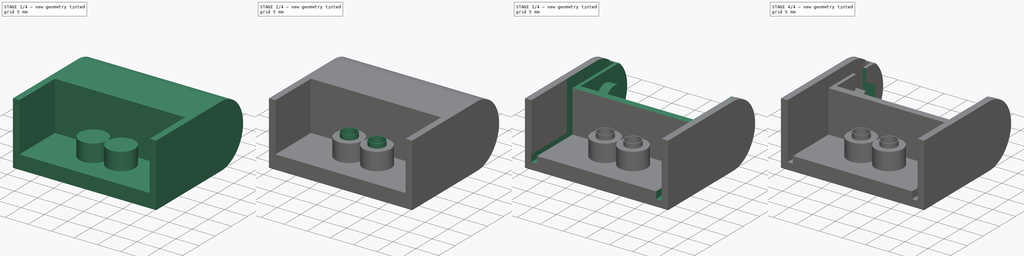
[diagram: build sequence overview — one tinted view per stage of 4, left to right]
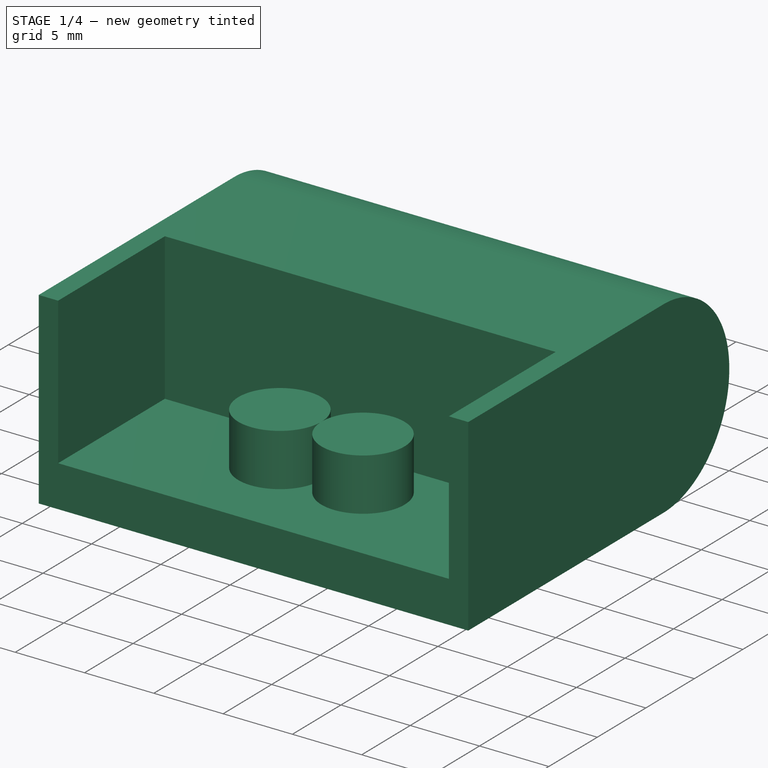
[diagram: stage 1 of 4 — iso view after this stage's code; geometry added in this stage tinted green]
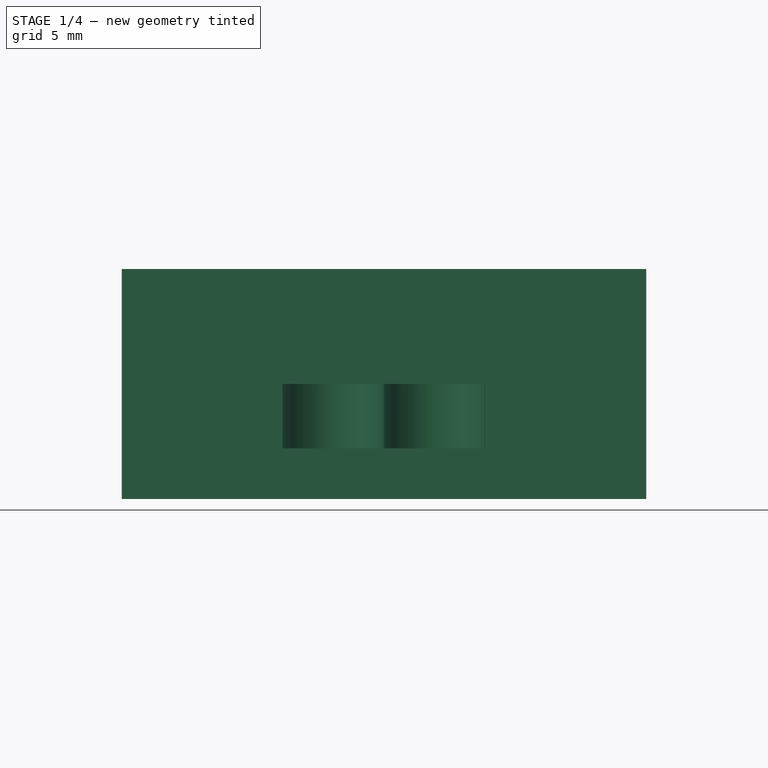
[diagram: stage 1 of 4 — front view after this stage's code; geometry added in this stage tinted green]
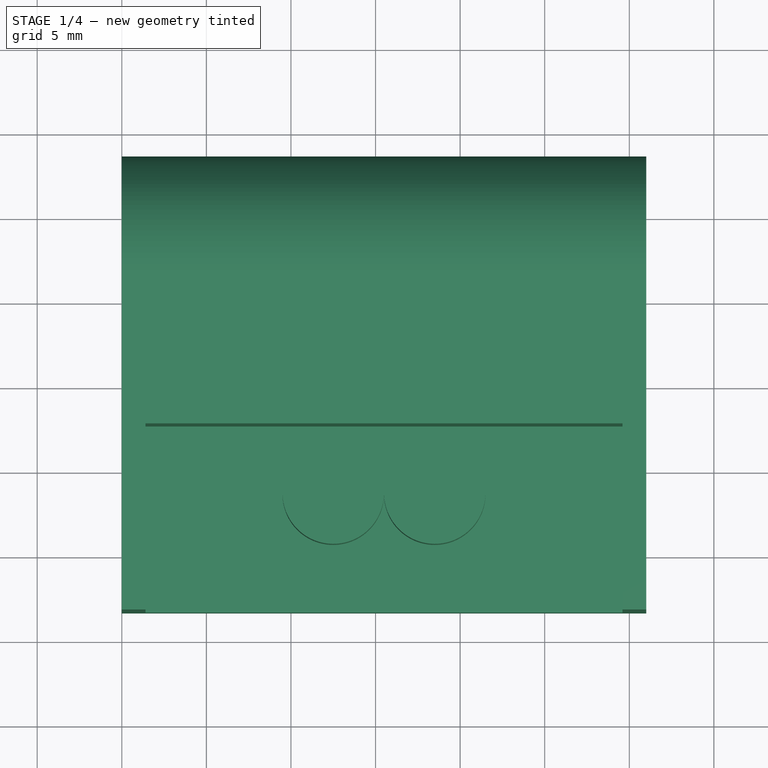
[diagram: stage 1 of 4 — top view after this stage's code; geometry added in this stage tinted green]
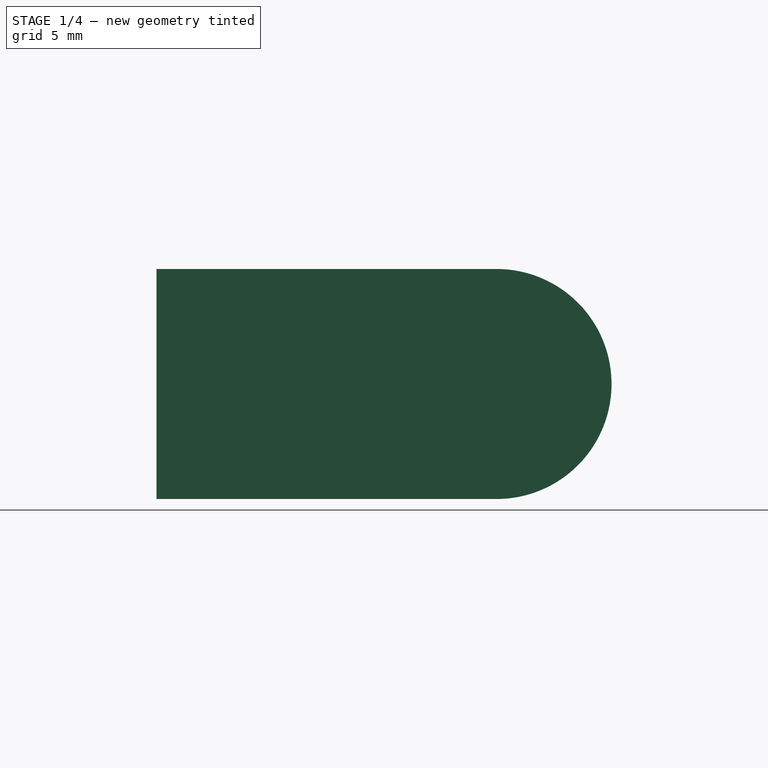
[diagram: stage 1 of 4 — right view after this stage's code; geometry added in this stage tinted green]
FCSTD DOCUMENT  (FreeCAD 1.0R38806 (Git))
Label: HingeBody
License: All rights reserved
LicenseURL: http://en.wikipedia.org/wiki/All_rights_reserved
objects: Sketcher::SketchObject×13, PartDesign::Pocket×8, PartDesign::Pad×5, PartDesign::Body×1
note: 66 computed .brp shape members not serialized (recipe doc carries the construction recipe); baked Part::Feature solids carry a one-line shape summary decoded from their .brp

FEATURE [Sketcher::SketchObject] Sketch
  ArcFitTolerance = 1e-06
  AttachmentSupport = -> [YZ_Plane]
  FullyConstrained = true
  MakeInternals = false
  MapMode = 5
  Placement = pos=(0,0,0) rot=(0.57735,0.57735,0.57735;2.0944rad)
  sketch-geometry (4):
    g0: LineSegment StartX=-13.3 StartY=6.8 StartZ=0 EndX=-13.3 EndY=-6.8 EndZ=0
    g1: ArcOfCircle CenterX=6.8 CenterY=0 CenterZ=0 NormalX=0 NormalY=0 NormalZ=1 AngleXU=0 Radius=6.8 StartAngle=4.71239 EndAngle=7.85399
    g2: LineSegment StartX=-13.3 StartY=6.8 StartZ=0 EndX=6.79996 EndY=6.8 EndZ=0
    g3: LineSegment StartX=-13.3 StartY=-6.8 StartZ=0 EndX=6.80003 EndY=-6.8 EndZ=0
  constraints (13):
    c: Vertical(g0)
    c: DistanceY(g0,g0) = 13.6
    c: Radius(g1) = 6.8
    c: Angle(g1) = 3.14159
    c: PointOnObject(g1,g-1)
    c: Distance(g-1,g1) = 6.8
    c: Distance(g-1,g0) = 13.3
    c: Coincident(g2,g0)
    c: Coincident(g2,g1)
    c: Coincident(g0,g3)
    c: Coincident(g3,g1)
    c: Parallel(g2,g-1)
    c: Distance(g2,g-1) = 6.8
FEATURE [PartDesign::Pad] Pad  label="MainBody"
  Direction = (1,0,0)
  Length = 31
  Length2 = 10
  Placement = pos=(0,0,0) rot=(1,1,1;2.0944rad)
  Profile = -> Sketch
  ReferenceAxis = -> Sketch [N_Axis]
  Suppressed = false
  Type = 0
FEATURE [Sketcher::SketchObject] Sketch001
  ArcFitTolerance = 1e-06
  AttachmentSupport = -> [Pad]
  ExternalGeometry = -> [Pad]
  FullyConstrained = true
  MakeInternals = false
  MapMode = 5
  Placement = pos=(0,1.5e-15,6.8) rot=(0,0,-1;1.5708rad)
  sketch-geometry (4):
    g0: LineSegment StartX=2.3 StartY=1.4 StartZ=0 EndX=13.3 EndY=1.4 EndZ=0
    g1: LineSegment StartX=13.3 StartY=1.4 StartZ=0 EndX=13.3 EndY=29.6 EndZ=0
    g2: LineSegment StartX=13.3 StartY=29.6 StartZ=0 EndX=2.3 EndY=29.6 EndZ=0
    g3: LineSegment StartX=2.3 StartY=29.6 StartZ=0 EndX=2.3 EndY=1.4 EndZ=0
  constraints (13):
    c: Coincident(g0,g1)
    c: Coincident(g1,g2)
    c: Coincident(g2,g3)
    c: Coincident(g3,g0)
    c: Horizontal(g0)
    c: Horizontal(g2)
    c: Vertical(g1)
    c: Vertical(g3)
    c: PointOnObject(g1,g-3)
    c: DistanceY(g-3,g-3) = 31
    c: Distance(g-1,g0) = 1.4
    c: DistanceX(g2,g2) = 11
    c: Distance(g2,g-4) = 1.4
FEATURE [PartDesign::Pocket] Pocket  label="PocketForScrews"
  BaseFeature = -> Pad
  Direction = (0,0,-1)
  Length = 10.6
  Length2 = 5
  Placement = pos=(0,0,0) rot=(1,1,1;2.0944rad)
  Profile = -> Sketch001
  ReferenceAxis = -> Sketch001 [N_Axis]
  Suppressed = false
  Type = 0
FEATURE [Sketcher::SketchObject] Sketch002
  ArcFitTolerance = 1e-06
  AttachmentSupport = -> [Pocket]
  ExternalGeometry = -> [Pocket]
  FullyConstrained = true
  MakeInternals = false
  MapMode = 5
  Placement = pos=(0,0,-3.8) rot=(0,0,-1;1.5708rad)
  sketch-geometry (2):
    g0: Circle CenterX=6.3 CenterY=18.5 CenterZ=0 NormalX=0 NormalY=0 NormalZ=1 AngleXU=0 Radius=3
    g1: Circle CenterX=6.3 CenterY=12.5 CenterZ=0 NormalX=0 NormalY=0 NormalZ=1 AngleXU=0 Radius=3
  constraints (6):
    c: Diameter(g0) = 6
    c: Diameter(g1) = 6
    c: Distance(g0,g-3) = 7
    c: Distance(g1,g-3) = 7
    c: Distance(g1,g-1) = 12.5
    c: Distance(g0,g-4) = 12.5
FEATURE [PartDesign::Pad] Pad001  label="ScrewHolderOuter"
  BaseFeature = -> Pocket
  Direction = (0,0,1)
  Length = 3.8
  Length2 = 10
  Placement = pos=(0,0,0) rot=(1,1,1;2.0944rad)
  Profile = -> Sketch002
  ReferenceAxis = -> Sketch002 [N_Axis]
  Suppressed = false
  Type = 0
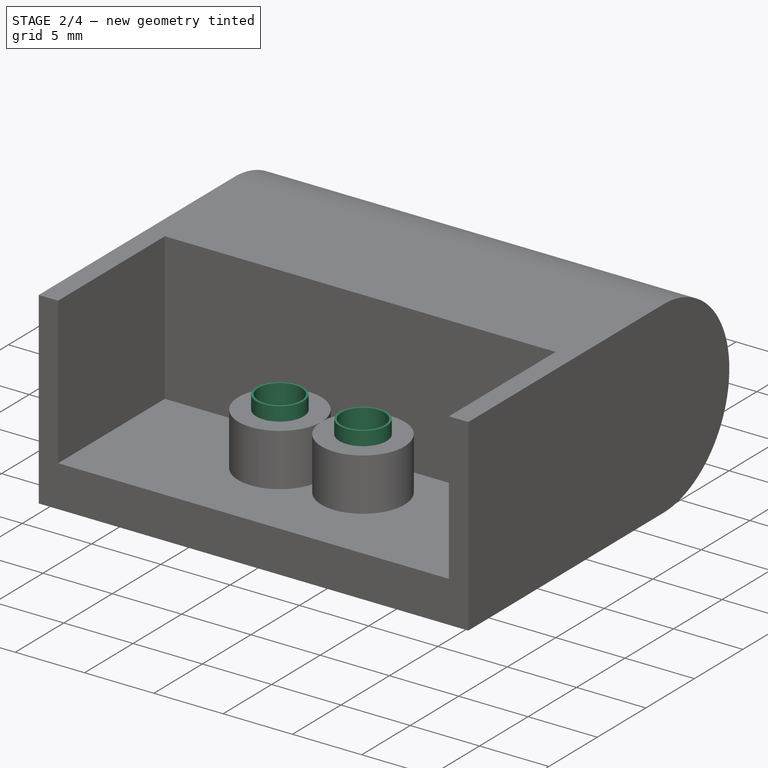
[diagram: stage 2 of 4 — iso view after this stage's code; geometry added in this stage tinted green]
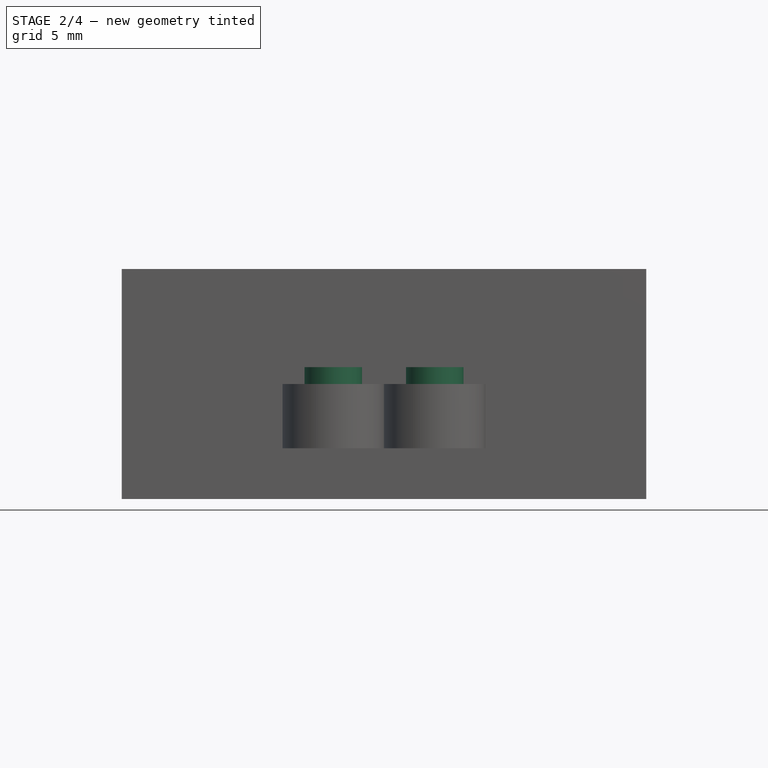
[diagram: stage 2 of 4 — front view after this stage's code; geometry added in this stage tinted green]
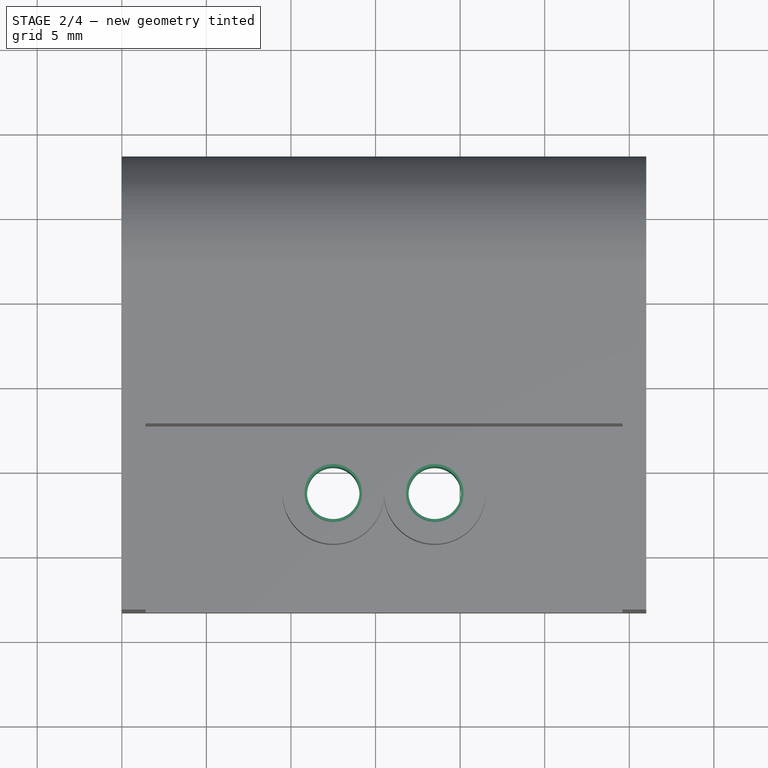
[diagram: stage 2 of 4 — top view after this stage's code; geometry added in this stage tinted green]
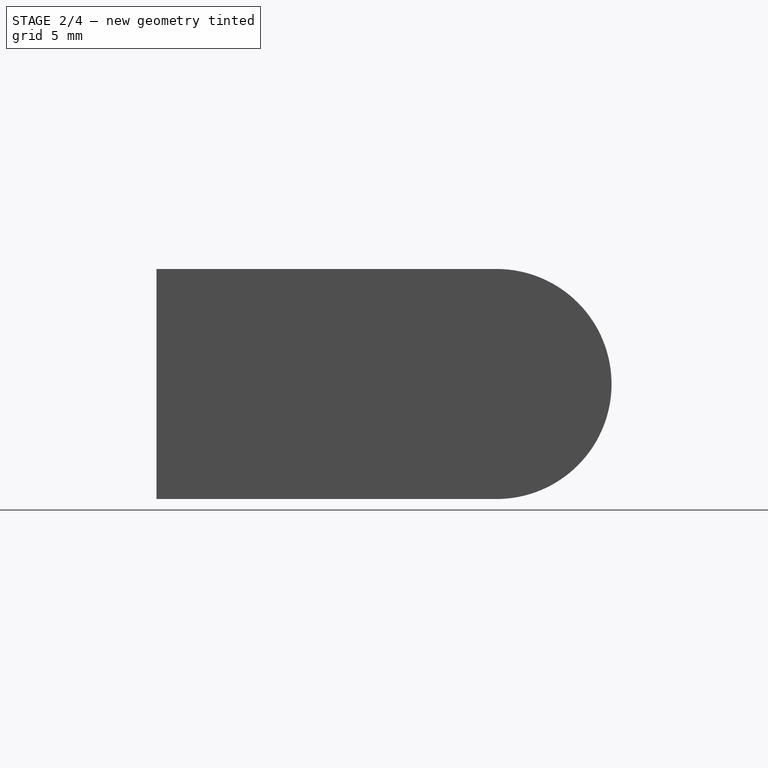
[diagram: stage 2 of 4 — right view after this stage's code; geometry added in this stage tinted green]
FEATURE [Sketcher::SketchObject] Sketch003
  ArcFitTolerance = 1e-06
  AttachmentSupport = -> [Pad001]
  ExternalGeometry = -> [Pad001]
  FullyConstrained = true
  MakeInternals = false
  MapMode = 5
  Placement = pos=(0,0,-3.8) rot=(0,0,-1;1.5708rad)
  sketch-geometry (2):
    g0: Circle CenterX=6.3 CenterY=18.5 CenterZ=0 NormalX=0 NormalY=0 NormalZ=1 AngleXU=0 Radius=1.7
    g1: Circle CenterX=6.3 CenterY=12.5 CenterZ=0 NormalX=0 NormalY=0 NormalZ=1 AngleXU=0 Radius=1.7
  constraints (6):
    c: Diameter(g0) = 3.4
    c: Diameter(g1) = 3.4
    c: Distance(g0,g-3) = 7
    c: Distance(g1,g-3) = 7
    c: Distance(g0,g-4) = 12.5
    c: Distance(g1,g-1) = 12.5
FEATURE [PartDesign::Pad] Pad002  label="ScrewHolderInner"
  BaseFeature = -> Pad001
  Direction = (0,0,1)
  Length = 4.8
  Length2 = 10
  Placement = pos=(0,0,0) rot=(1,1,1;2.0944rad)
  Profile = -> Sketch003
  ReferenceAxis = -> Sketch003 [N_Axis]
  Suppressed = false
  Type = 0
FEATURE [Sketcher::SketchObject] Sketch004
  ArcFitTolerance = 1e-06
  AttachmentSupport = -> [Pad002]
  ExternalGeometry = -> [Pad002]
  FullyConstrained = true
  MakeInternals = false
  MapMode = 5
  Placement = pos=(0,0,-3.8) rot=(0,0,-1;1.5708rad)
  sketch-geometry (2):
    g0: Circle CenterX=6.3 CenterY=18.5 CenterZ=0 NormalX=0 NormalY=0 NormalZ=1 AngleXU=0 Radius=1.55
    g1: Circle CenterX=6.3 CenterY=12.5 CenterZ=0 NormalX=0 NormalY=0 NormalZ=1 AngleXU=0 Radius=1.55
  constraints (6):
    c: Diameter(g0) = 3.1
    c: Diameter(g1) = 3.1
    c: Distance(g0,g-4) = 7
    c: Distance(g1,g-4) = 7
    c: Distance(g0,g-3) = 12.5
    c: Distance(g1,g-1) = 12.5
FEATURE [PartDesign::Pocket] Pocket001  label="ScrewHoles"
  BaseFeature = -> Pad002
  Direction = (0,0,-1)
  Length = 5
  Length2 = 5
  Midplane = true
  Placement = pos=(0,0,0) rot=(1,1,1;2.0944rad)
  Profile = -> Sketch004
  ReferenceAxis = -> Sketch004 [N_Axis]
  Suppressed = false
  Type = 1
FEATURE [Sketcher::SketchObject] Sketch005
  ArcFitTolerance = 1e-06
  AttachmentSupport = -> [Pocket001]
  ExternalGeometry = -> [Pocket001]
  FullyConstrained = true
  MakeInternals = false
  MapMode = 5
  Placement = pos=(0,-4.0201e-12,-6.8) rot=(0.707107,0.707107,0;3.14159rad)
  sketch-geometry (14):
    g0: LineSegment StartX=-3 StartY=18.5 StartZ=0 EndX=-4.65 EndY=21.3579 EndZ=0
    g1: LineSegment StartX=-4.65 StartY=21.3579 StartZ=0 EndX=-7.95 EndY=21.3579 EndZ=0
    g2: LineSegment StartX=-7.95 StartY=21.3579 StartZ=0 EndX=-9.6 EndY=18.5 EndZ=0
    g3: LineSegment StartX=-9.6 StartY=18.5 StartZ=0 EndX=-7.95 EndY=15.6421 EndZ=0
    g4: LineSegment StartX=-7.95 StartY=15.6421 StartZ=0 EndX=-4.65 EndY=15.6421 EndZ=0
    g5: LineSegment StartX=-4.65 StartY=15.6421 StartZ=0 EndX=-3 EndY=18.5 EndZ=0
    g6: Circle [constr] CenterX=-6.3 CenterY=18.5 CenterZ=0 NormalX=0 NormalY=0 NormalZ=1 AngleXU=0 Radius=3.3
    g7: LineSegment StartX=-3 StartY=12.5 StartZ=0 EndX=-4.65 EndY=15.3579 EndZ=0
    g8: LineSegment StartX=-4.65 StartY=15.3579 StartZ=0 EndX=-7.95 EndY=15.3579 EndZ=0
    g9: LineSegment StartX=-7.95 StartY=15.3579 StartZ=0 EndX=-9.6 EndY=12.5 EndZ=0
    g10: LineSegment StartX=-9.6 StartY=12.5 StartZ=0 EndX=-7.95 EndY=9.64212 EndZ=0
    g11: LineSegment StartX=-7.95 StartY=9.64212 StartZ=0 EndX=-4.65 EndY=9.64212 EndZ=0
    g12: LineSegment StartX=-4.65 StartY=9.64212 StartZ=0 EndX=-3 EndY=12.5 EndZ=0
    g13: Circle [constr] CenterX=-6.3 CenterY=12.5 CenterZ=0 NormalX=0 NormalY=0 NormalZ=1 AngleXU=0 Radius=3.3
  constraints (34):
    c: Coincident(g0,g1)
    c: Coincident(g1,g2)
    c: Coincident(g2,g3)
    c: Coincident(g3,g4)
    c: Coincident(g4,g5)
    c: Coincident(g5,g0)
    c: Equal(g0, g1-g5) x5
    c: PointOnObject(g0,g6)
    c: PointOnObject(g1,g6)
    c: PointOnObject(g2,g6)
    c: PointOnObject(g3,g6)
    c: PointOnObject(g4,g6)
    c: PointOnObject(g5,g6)
    c: Radius(g6) = 3.3
    c: Coincident(g7,g8)
    c: Coincident(g8,g9)
    c: Coincident(g9,g10)
    c: Coincident(g10,g11)
    c: Coincident(g11,g12)
    c: Coincident(g12,g7)
    c: Equal(g7, g8-g12) x5
    c: PointOnObject(g7,g13)
    c: PointOnObject(g8,g13)
    c: PointOnObject(g9,g13)
    c: PointOnObject(g10,g13)
    c: PointOnObject(g11,g13)
    c: PointOnObject(g12,g13)
    c: Radius(g13) = 3.3
    c: Distance(g6,g-4) = 7
    c: Distance(g13,g-4) = 7
    c: Distance(g6,g-3) = 12.5
    c: Distance(g13,g-1) = 12.5
    c: Parallel(g11,g-1)
    c: Parallel(g1,g-3)
FEATURE [PartDesign::Pocket] Pocket002  label="NutHoles"
  BaseFeature = -> Pocket001
  Direction = (0,5.912e-13,1)
  Length = 2.3
  Length2 = 5
  Placement = pos=(0,0,0) rot=(1,1,1;2.0944rad)
  Profile = -> Sketch005
  ReferenceAxis = -> Sketch005 [N_Axis]
  Suppressed = false
  Type = 0
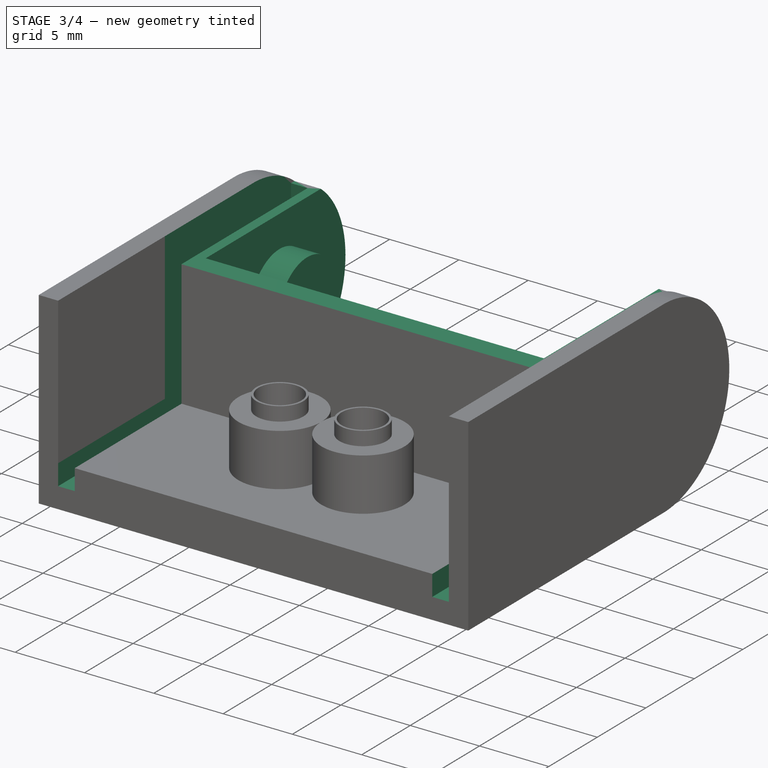
[diagram: stage 3 of 4 — iso view after this stage's code; geometry added in this stage tinted green]
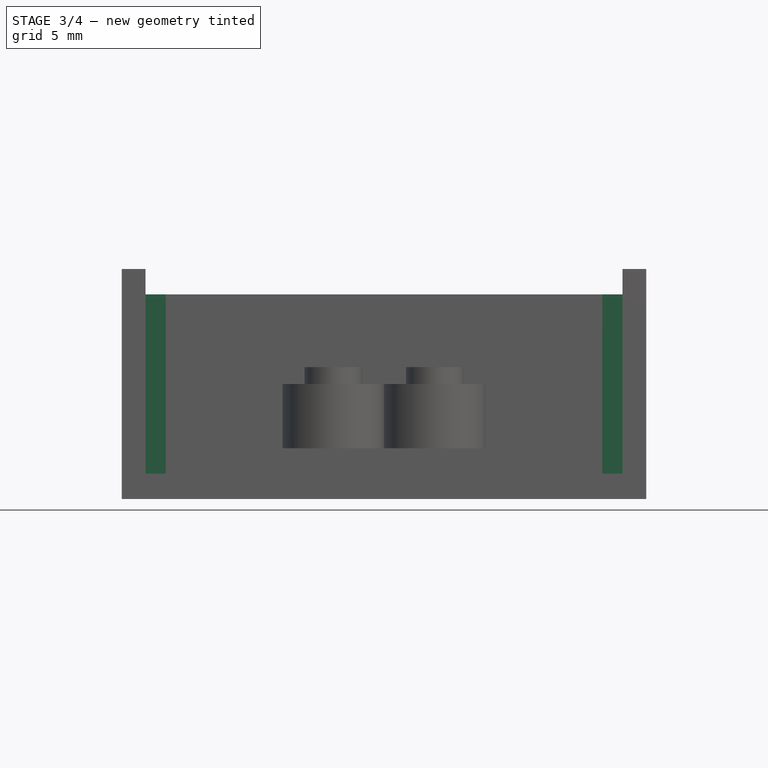
[diagram: stage 3 of 4 — front view after this stage's code; geometry added in this stage tinted green]
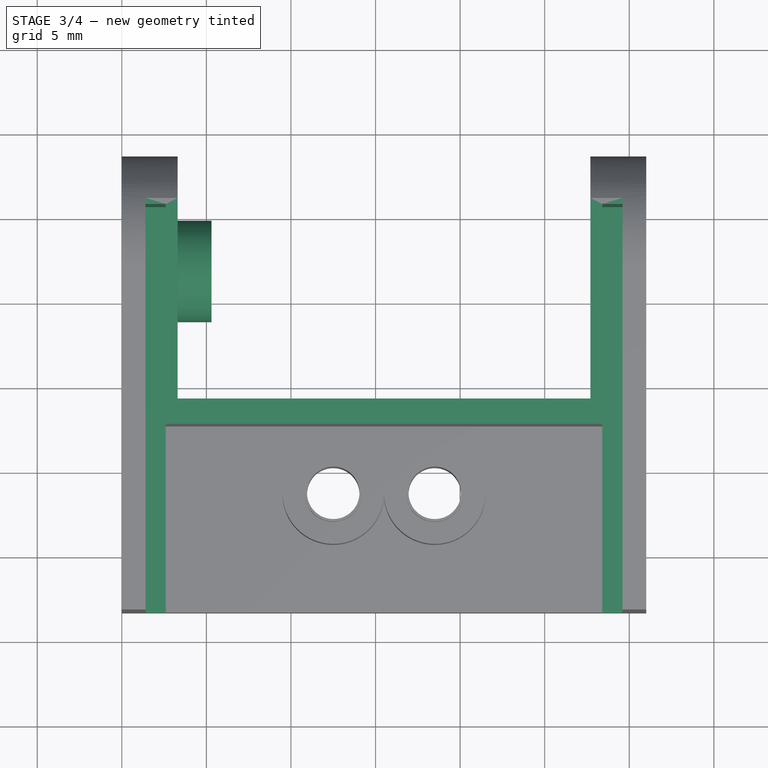
[diagram: stage 3 of 4 — top view after this stage's code; geometry added in this stage tinted green]
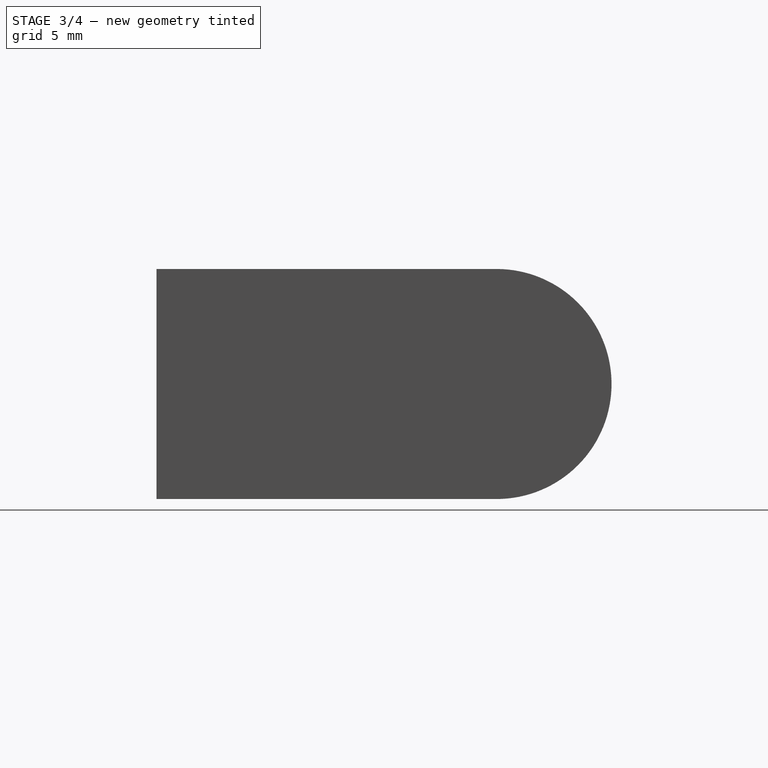
[diagram: stage 3 of 4 — right view after this stage's code; geometry added in this stage tinted green]
FEATURE [Sketcher::SketchObject] Sketch006
  ArcFitTolerance = 1e-06
  AttachmentSupport = -> [Pocket002]
  ExternalGeometry = -> [Pocket002]
  FullyConstrained = true
  MakeInternals = false
  MapMode = 5
  Placement = pos=(-2.3e-15,2.3e-15,6.8) rot=(0,0,-1;1.5708rad)
  sketch-geometry (4):
    g0: LineSegment StartX=-13.7 StartY=1.4 StartZ=0 EndX=2.3 EndY=1.4 EndZ=0
    g1: LineSegment StartX=2.3 StartY=1.4 StartZ=0 EndX=2.3 EndY=29.6 EndZ=0
    g2: LineSegment StartX=2.3 StartY=29.6 StartZ=0 EndX=-13.7 EndY=29.6 EndZ=0
    g3: LineSegment StartX=-13.7 StartY=29.6 StartZ=0 EndX=-13.7 EndY=1.4 EndZ=0
  constraints (11):
    c: DistanceY(g-3,g-3) = 28.3
    c: Coincident(g0,g1)
    c: Coincident(g1,g2)
    c: Coincident(g2,g3)
    c: Coincident(g3,g0)
    c: Horizontal(g0)
    c: Horizontal(g2)
    c: Vertical(g3)
    c: DistanceX(g0,g0) = 16
    c: Coincident(g-4,g0)
    c: Coincident(g-4,g1)
FEATURE [PartDesign::Pocket] Pocket003  label="LowerTheCeiling"
  BaseFeature = -> Pocket002
  Direction = (0,0,-1)
  Length = 1.5
  Length2 = 5
  Placement = pos=(0,0,0) rot=(1,1,1;2.0944rad)
  Profile = -> Sketch006
  ReferenceAxis = -> Sketch006 [N_Axis]
  Suppressed = false
  Type = 0
FEATURE [Sketcher::SketchObject] Sketch007
  ArcFitTolerance = 1e-06
  AttachmentSupport = -> [Pocket003]
  ExternalGeometry = -> [Pocket003]
  FullyConstrained = true
  MakeInternals = false
  MapMode = 5
  Placement = pos=(-1.8e-15,6e-16,5.3) rot=(0,0,-1;1.5708rad)
  sketch-geometry (8):
    g0: LineSegment StartX=-10.7 StartY=1.4 StartZ=0 EndX=13.3 EndY=1.4 EndZ=0
    g1: LineSegment StartX=13.3 StartY=1.4 StartZ=0 EndX=13.3 EndY=2.6 EndZ=0
    g2: LineSegment StartX=13.3 StartY=2.6 StartZ=0 EndX=-10.7 EndY=2.6 EndZ=0
    g3: LineSegment StartX=-10.7 StartY=2.6 StartZ=0 EndX=-10.7 EndY=1.4 EndZ=0
    g4: LineSegment StartX=-10.7 StartY=28.4 StartZ=0 EndX=13.3 EndY=28.4 EndZ=0
    g5: LineSegment StartX=13.3 StartY=28.4 StartZ=0 EndX=13.3 EndY=29.6 EndZ=0
    g6: LineSegment StartX=13.3 StartY=29.6 StartZ=0 EndX=-10.7 EndY=29.6 EndZ=0
    g7: LineSegment StartX=-10.7 StartY=29.6 StartZ=0 EndX=-10.7 EndY=28.4 EndZ=0
  constraints (24):
    c: Coincident(g0,g1)
    c: Coincident(g1,g2)
    c: Coincident(g2,g3)
    c: Coincident(g3,g0)
    c: Horizontal(g0)
    c: Horizontal(g2)
    c: Vertical(g1)
    c: Vertical(g3)
    c: PointOnObject(g0,g-4)
    c: DistanceY(g3,g3) = 1.2
    c: PointOnObject(g1,g-7)
    c: DistanceX(g2,g2) = 24
    c: Coincident(g4,g5)
    c: Coincident(g5,g6)
    c: Coincident(g6,g7)
    c: Coincident(g7,g4)
    c: Horizontal(g4)
    c: Horizontal(g6)
    c: Vertical(g5)
    c: Vertical(g7)
    c: PointOnObject(g4,g-7)
    c: PointOnObject(g5,g-9)
    c: Distance(g7,g7) = 1.2
    c: DistanceX(g4,g4) = 24
FEATURE [PartDesign::Pocket] Pocket004  label="SidePads"
  BaseFeature = -> Pocket003
  Direction = (0,0,-1)
  Length = 10.6
  Length2 = 5
  Placement = pos=(0,0,0) rot=(1,1,1;2.0944rad)
  Profile = -> Sketch007
  ReferenceAxis = -> Sketch007 [N_Axis]
  Suppressed = false
  Type = 0
FEATURE [Sketcher::SketchObject] Sketch008
  ArcFitTolerance = 1e-06
  AttachmentSupport = -> [Pocket004]
  ExternalGeometry = -> [Pocket004]
  FullyConstrained = true
  MakeInternals = false
  MapMode = 5
  Placement = pos=(6.8e-15,-4.0224e-12,-6.8) rot=(0.707107,0.707107,0;3.14159rad)
  sketch-geometry (4):
    g0: LineSegment StartX=14.2 StartY=27.7 StartZ=0 EndX=-0.8 EndY=27.7 EndZ=0
    g1: LineSegment StartX=-0.8 StartY=27.7 StartZ=0 EndX=-0.8 EndY=3.3 EndZ=0
    g2: LineSegment StartX=-0.8 StartY=3.3 StartZ=0 EndX=14.2 EndY=3.3 EndZ=0
    g3: LineSegment StartX=14.2 StartY=3.3 StartZ=0 EndX=14.2 EndY=27.7 EndZ=0
  constraints (12):
    c: Coincident(g0,g1)
    c: Coincident(g1,g2)
    c: Coincident(g2,g3)
    c: Coincident(g3,g0)
    c: Horizontal(g0)
    c: Horizontal(g2)
    c: Vertical(g1)
    c: Vertical(g3)
    c: Distance(g1,g-4) = 12.5
    c: DistanceX(g0,g0) = 15
    c: Distance(g2,g-1) = 3.3
    c: Distance(g0,g-3) = 3.3
FEATURE [PartDesign::Pocket] Pocket005  label="PocketForPhoneAttachment"
  BaseFeature = -> Pocket004
  Direction = (0,5.915e-13,1)
  Length = 5
  Length2 = 5
  Placement = pos=(0,0,0) rot=(1,1,1;2.0944rad)
  Profile = -> Sketch008
  ReferenceAxis = -> Sketch008 [N_Axis]
  Suppressed = false
  Type = 1
FEATURE [Sketcher::SketchObject] Sketch009
  ArcFitTolerance = 1e-06
  AttachmentSupport = -> [Pocket005]
  FullyConstrained = true
  MakeInternals = false
  MapMode = 5
  Placement = pos=(3.3,-7e-16,1.1e-15) rot=(0.57735,0.57735,0.57735;2.0944rad)
  sketch-geometry (1):
    g0: Circle CenterX=6.8 CenterY=0 CenterZ=0 NormalX=0 NormalY=0 NormalZ=1 AngleXU=0 Radius=3
  constraints (3):
    c: Diameter(g0) = 6
    c: PointOnObject(g0,g-1)
    c: DistanceX(g-1,g0) = 6.8
FEATURE [PartDesign::Pad] Pad003  label="HingeAxisLeft"
  BaseFeature = -> Pocket005
  Direction = (1,0,0)
  Length = 2
  Length2 = 10
  Placement = pos=(0,0,0) rot=(1,1,1;2.0944rad)
  Profile = -> Sketch009
  ReferenceAxis = -> Sketch009 [N_Axis]
  Suppressed = false
  Type = 0
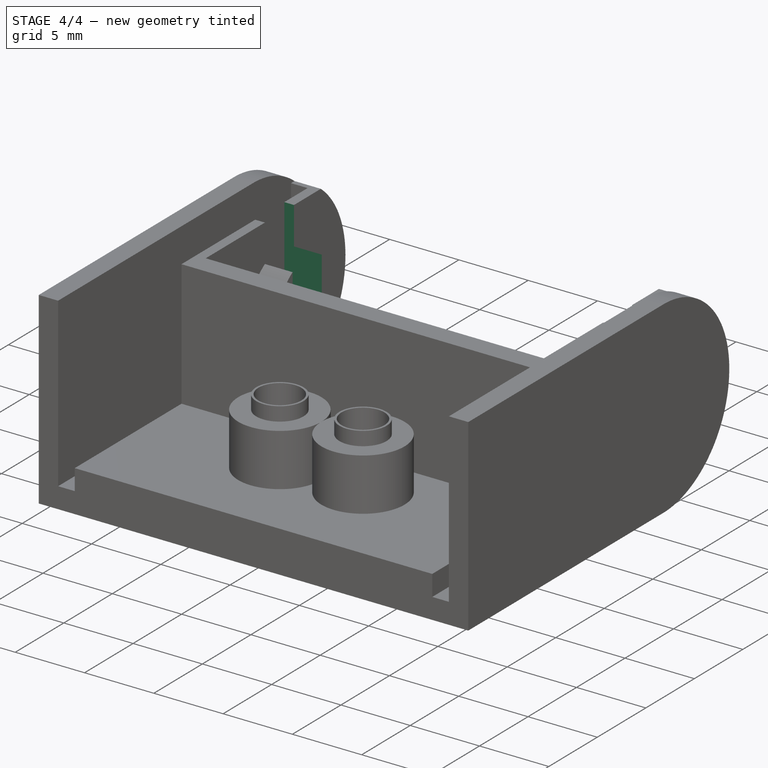
[diagram: stage 4 of 4 — iso view after this stage's code; geometry added in this stage tinted green]
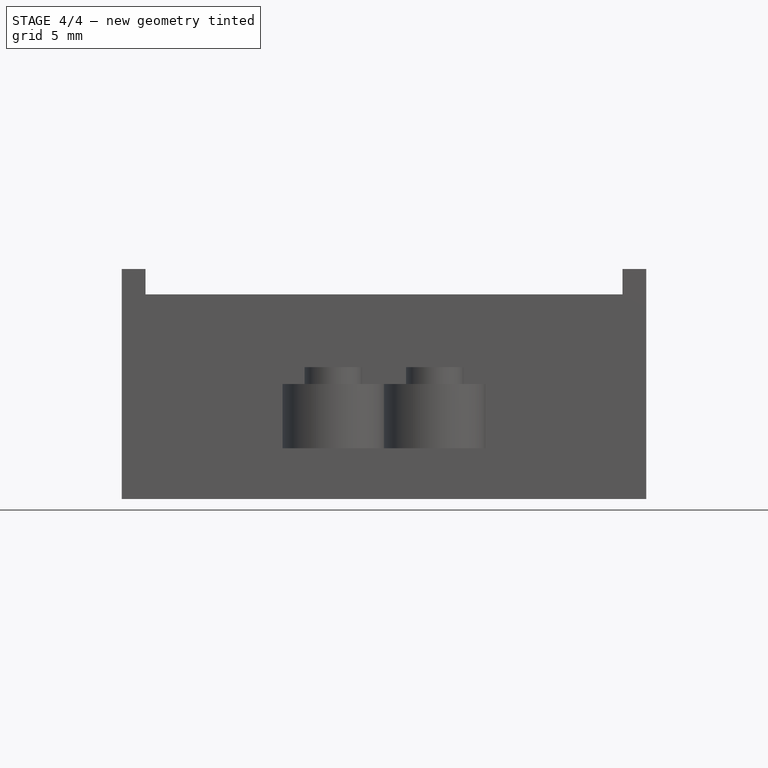
[diagram: stage 4 of 4 — front view after this stage's code; geometry added in this stage tinted green]
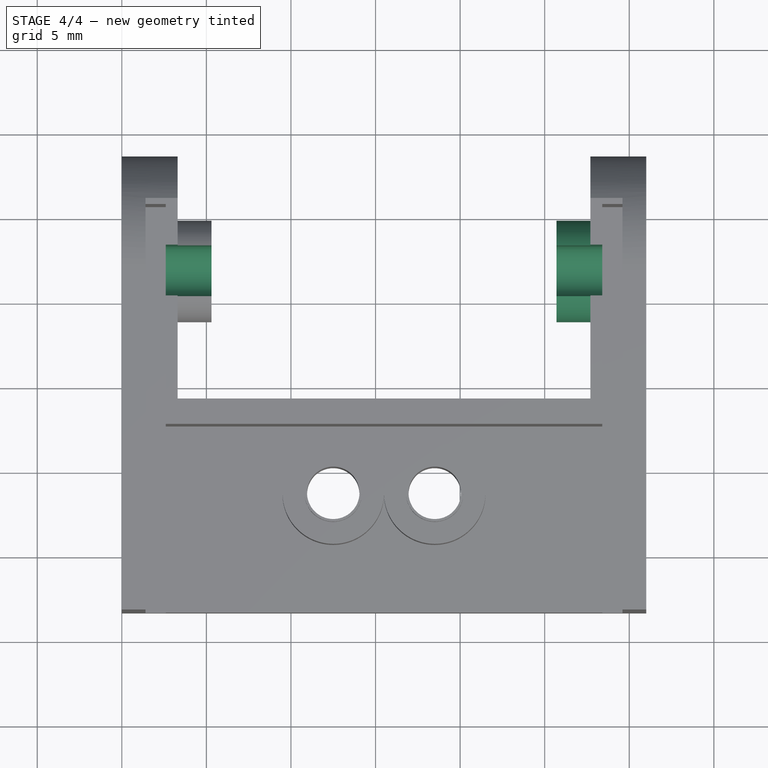
[diagram: stage 4 of 4 — top view after this stage's code; geometry added in this stage tinted green]
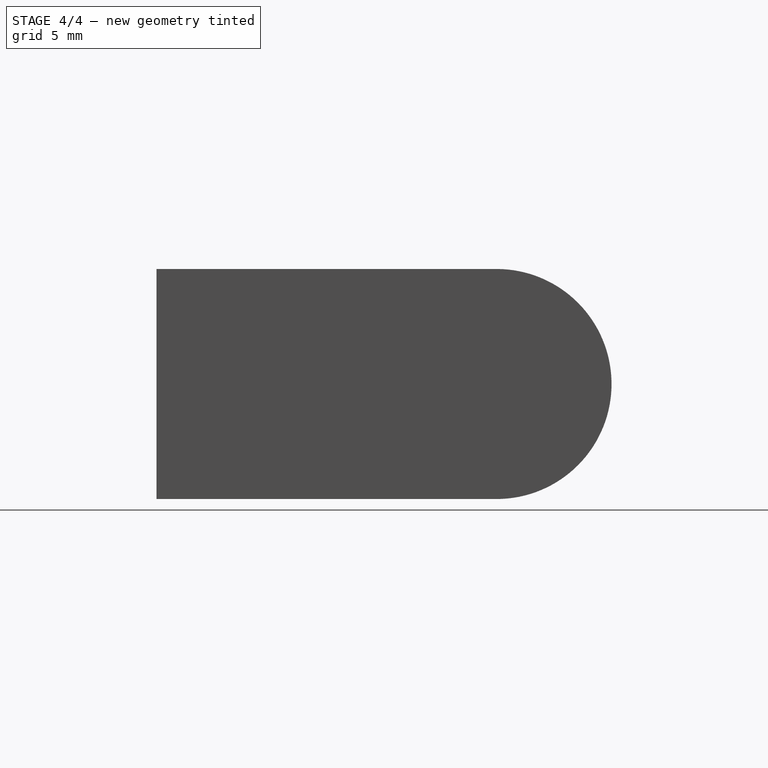
[diagram: stage 4 of 4 — right view after this stage's code; geometry added in this stage tinted green]
FEATURE [Sketcher::SketchObject] Sketch010
  ArcFitTolerance = 1e-06
  AttachmentSupport = -> [Pad003]
  ExternalGeometry = -> [Pad003]
  FullyConstrained = true
  MakeInternals = false
  MapMode = 5
  Placement = pos=(5.3,-1.2e-15,6e-16) rot=(0.57735,0.57735,0.57735;2.0944rad)
  sketch-geometry (4):
    g0: LineSegment StartX=5.3 StartY=5.3 StartZ=0 EndX=5.3 EndY=0 EndZ=0
    g1: LineSegment StartX=8.3 StartY=2.50814e-08 StartZ=0 EndX=8.3 EndY=5.3 EndZ=0
    g2: LineSegment StartX=8.3 StartY=5.3 StartZ=0 EndX=5.3 EndY=5.3 EndZ=0
    g3: ArcOfCircle CenterX=6.8 CenterY=-2.47267e-07 CenterZ=0 NormalX=0 NormalY=0 NormalZ=1 AngleXU=0 Radius=1.5 StartAngle=3.14159 EndAngle=6.28319
  constraints (13):
    c: Coincident(g1,g2)
    c: Coincident(g2,g0)
    c: Vertical(g0)
    c: Vertical(g1)
    c: Horizontal(g2)
    c: Angle(g3) = 3.14159
    c: Radius(g3) = 1.5
    c: PointOnObject(g0,g-1)
    c: Coincident(g3,g0)
    c: DistanceX(g-1,g3) = 6.8
    c: DistanceX(g2,g2) = 3
    c: Coincident(g1,g3)
    c: PointOnObject(g0,g-3)
FEATURE [PartDesign::Pocket] Pocket006  label="CableHoleLeft"
  BaseFeature = -> Pad003
  Direction = (-1,0,0)
  Length = 3
  Length2 = 5
  Placement = pos=(0,0,0) rot=(1,1,1;2.0944rad)
  Profile = -> Sketch010
  ReferenceAxis = -> Sketch010 [N_Axis]
  Suppressed = false
  Type = 0
FEATURE [Sketcher::SketchObject] Sketch011
  ArcFitTolerance = 1e-06
  AttachmentSupport = -> [Pocket006]
  FullyConstrained = true
  MakeInternals = false
  MapMode = 5
  Placement = pos=(27.7,-1.85e-14,1.54e-14) rot=(0.57735,0.57735,-0.57735;4.18879rad)
  sketch-geometry (1):
    g0: Circle CenterX=6.8 CenterY=0 CenterZ=0 NormalX=0 NormalY=0 NormalZ=1 AngleXU=0 Radius=3
  constraints (3):
    c: Diameter(g0) = 6
    c: Distance(g0,g-2) = 6.8
    c: PointOnObject(g0,g-1)
FEATURE [PartDesign::Pad] Pad004  label="HingeAxisRight"
  BaseFeature = -> Pocket006
  Direction = (-1,0,0)
  Length = 2
  Length2 = 10
  Placement = pos=(0,0,0) rot=(1,1,1;2.0944rad)
  Profile = -> Sketch011
  ReferenceAxis = -> Sketch011 [N_Axis]
  Suppressed = false
  Type = 0
FEATURE [Sketcher::SketchObject] Sketch012
  ArcFitTolerance = 1e-06
  AttachmentSupport = -> [Pad004]
  ExternalGeometry = -> [Pad004]
  FullyConstrained = true
  MakeInternals = false
  MapMode = 5
  Placement = pos=(25.7,-5.7e-15,2.9e-15) rot=(0.57735,0.57735,-0.57735;4.18879rad)
  sketch-geometry (4):
    g0: ArcOfCircle CenterX=6.8 CenterY=0 CenterZ=0 NormalX=0 NormalY=0 NormalZ=1 AngleXU=0 Radius=1.5 StartAngle=0 EndAngle=3.14159
    g1: LineSegment StartX=5.3 StartY=-5.19615e-07 StartZ=0 EndX=5.3 EndY=-5.3 EndZ=0
    g2: LineSegment StartX=5.3 StartY=-5.3 StartZ=0 EndX=8.3 EndY=-5.3 EndZ=0
    g3: LineSegment StartX=8.3 StartY=-5.3 StartZ=0 EndX=8.3 EndY=0 EndZ=0
  constraints (13):
    c: Radius(g0) = 1.5
    c: Angle(g0) = 3.14159
    c: PointOnObject(g0,g-1)
    c: DistanceX(g-1,g0) = 6.8
    c: PointOnObject(g0,g-1)
    c: Coincident(g1,g2)
    c: Coincident(g2,g3)
    c: Vertical(g1)
    c: Vertical(g3)
    c: Horizontal(g2)
    c: Coincident(g1,g0)
    c: Coincident(g3,g0)
    c: PointOnObject(g2,g-3)
FEATURE [PartDesign::Pocket] Pocket007  label="CableHoleRight"
  BaseFeature = -> Pad004
  Direction = (1,0,0)
  Length = 3
  Length2 = 5
  Placement = pos=(0,0,0) rot=(1,1,1;2.0944rad)
  Profile = -> Sketch012
  ReferenceAxis = -> Sketch012 [N_Axis]
  Suppressed = false
  Type = 0
FEATURE [PartDesign::Body] Body
  AllowCompound = false
  Group = -> [Sketch,Pad,Sketch001,Pocket,Sketch002,Pad001,Sketch003,Pad002,Sketch004,Pocket001,Sketch005,Pocket002,Sketch006,Pocket003,Sketch007,Pocket004,Sketch008,Pocket005,Sketch009,Pad003,Sketch010,Pocket006,Sketch011,Pad004,Sketch012,Pocket007]
  Origin = -> Origin
  Tip = -> Pocket007
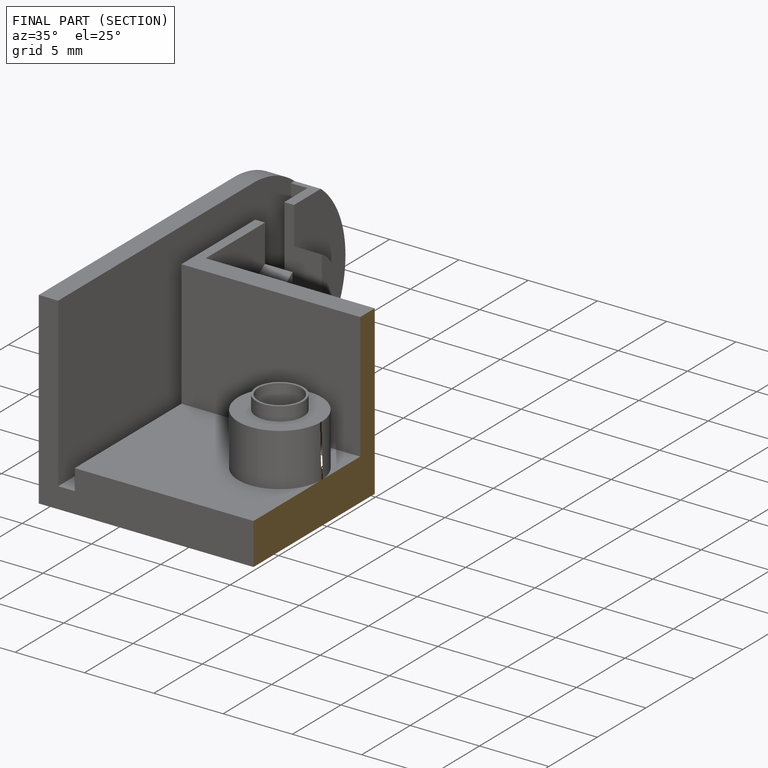
[diagram: finished part — half-section view (interior)]
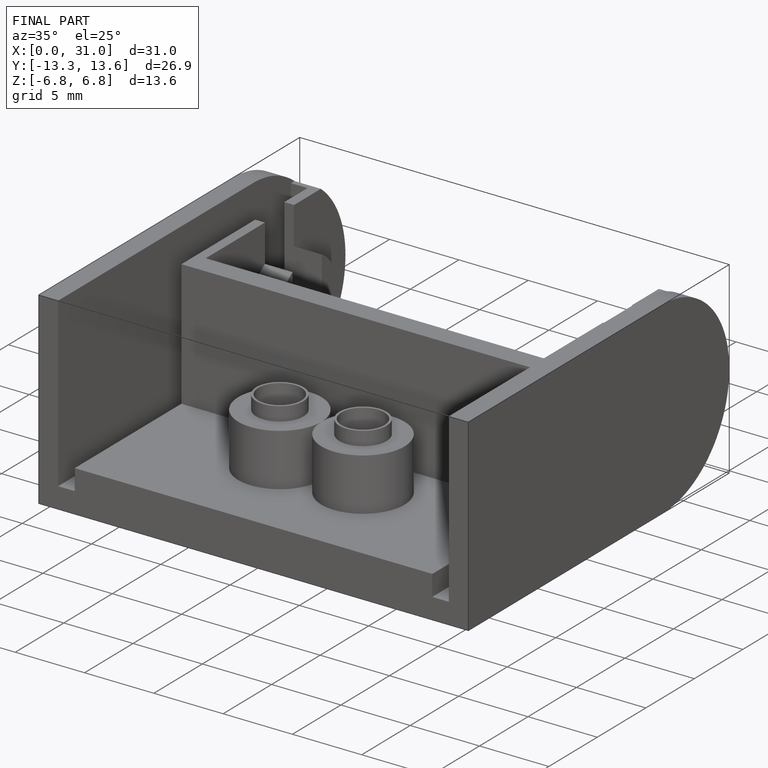
[diagram: finished part — iso view with bounding-box wireframe]
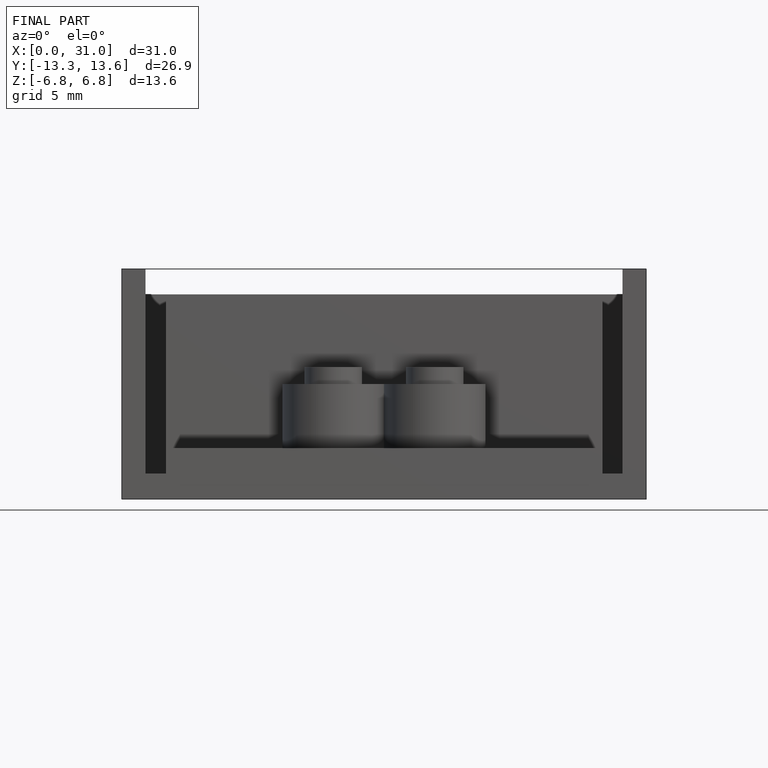
[diagram: finished part — front view with bounding-box wireframe]
